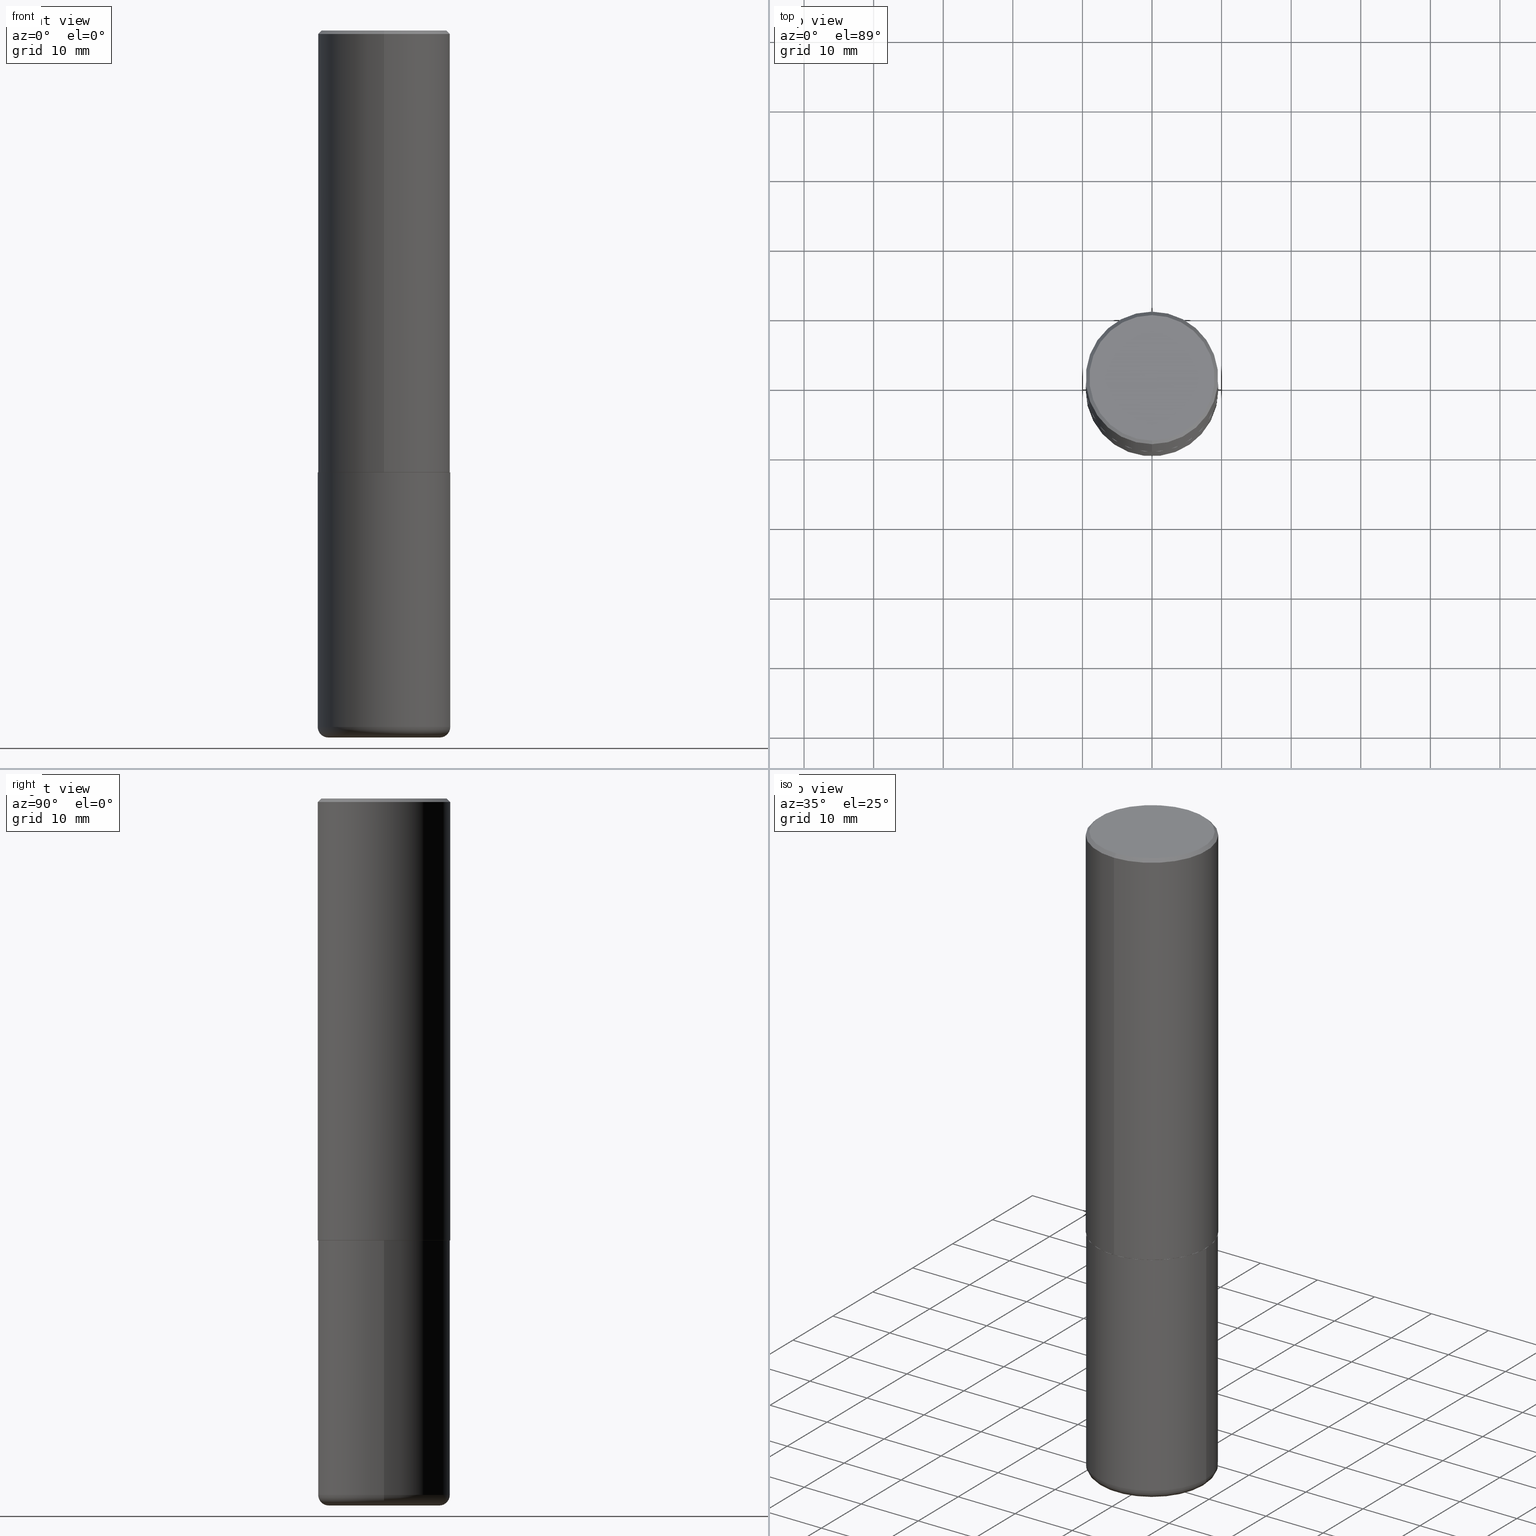
[diagram: canonical four-view strip — front | top / right | iso, engineering-drawing reading convention]
A machine part, canonical four-view strip (front | top / right | iso — engineering-drawing reading convention). The complete STEP part file that produces these views, byte-faithful:
ISO-10303-21;
HEADER;
FILE_DESCRIPTION (( 'STEP AP203' ),
    '1' );
FILE_NAME ('37208.STEP',
    '2024-03-01T21:56:50',
    ( '' ),
    ( '' ),
    'SwSTEP 2.0',
    'SolidWorks 2023',
    '' );
FILE_SCHEMA (( 'CONFIG_CONTROL_DESIGN' ));
ENDSEC;

DATA;
#1 = CIRCLE ( 'NONE', #268, 0.3750000000000000555 ) ;
#2 = VECTOR ( 'NONE', #57, 39.37007874015748143 ) ;
#3 = ORIENTED_EDGE ( 'NONE', *, *, #190, .F. ) ;
#4 = CIRCLE ( 'NONE', #330, 0.3750000000000000555 ) ;
#5 = PRODUCT ( '37208', '37208', '', ( #385 ) ) ;
#6 = DIRECTION ( 'NONE',  ( -2.445468806185136597E-29, 3.491481338843145583E-15, 1.000000000000000000 ) ) ;
#7 = ADVANCED_FACE ( 'NONE', ( #194 ), #284, .T. ) ;
#8 = EDGE_CURVE ( 'NONE', #395, #316, #4, .T. ) ;
#9 = APPLICATION_CONTEXT ( 'configuration controlled 3d designs of mechanical parts and assemblies' ) ;
#10 = EDGE_LOOP ( 'NONE', ( #233, #396 ) ) ;
#11 = FACE_OUTER_BOUND ( 'NONE', #92, .T. ) ;
#12 = CIRCLE ( 'NONE', #53, 0.3750000000000000555 ) ;
#13 = DIRECTION ( 'NONE',  ( -2.444946167972934928E-29, 3.492229786509738161E-15, 1.000000000000000000 ) ) ;
#14 = DIRECTION ( 'NONE',  ( -2.444946167972934928E-29, 3.492229786509738161E-15, 1.000000000000000000 ) ) ;
#15 = CARTESIAN_POINT ( 'NONE',  ( 9.635147096369438236E-29, -1.375643647504199401E-14, -3.939999999999999947 ) ) ;
#16 = CARTESIAN_POINT ( 'NONE',  ( 6.112365419932337880E-29, -8.730574466274345798E-15, -2.500000000000000000 ) ) ;
#17 = CLOSED_SHELL ( 'NONE', ( #60, #308, #262, #93, #41, #418 ) ) ;
#18 = DIRECTION ( 'NONE',  ( -2.445468806185136597E-29, 3.491481338843145583E-15, 1.000000000000000000 ) ) ;
#19 = EDGE_CURVE ( 'NONE', #294, #58, #226, .T. ) ;
#20 =( NAMED_UNIT ( * ) PLANE_ANGLE_UNIT ( ) SI_UNIT ( $, .RADIAN. ) );
#21 = LINE ( 'NONE', #265, #331 ) ;
#22 = CALENDAR_DATE ( 2024, 1, 3 ) ;
#23 = FACE_OUTER_BOUND ( 'NONE', #108, .T. ) ;
#24 = VERTEX_POINT ( 'NONE', #417 ) ;
#25 = DIRECTION ( 'NONE',  ( 1.000000000000000000, -6.982962677686267499E-15, 0.000000000000000000 ) ) ;
#26 = CIRCLE ( 'NONE', #76, 0.3750000000000002776 ) ;
#27 = APPROVAL ( #248, 'UNSPECIFIED' ) ;
#28 = COORDINATED_UNIVERSAL_TIME_OFFSET ( 5, 0, .BEHIND. ) ;
#29 = LINE ( 'NONE', #99, #371 ) ;
#30 = CARTESIAN_POINT ( 'NONE',  ( 2.664535259100376486E-15, 0.3750000000000001665, -1.309586169941152501E-15 ) ) ;
#31 = ORIENTED_EDGE ( 'NONE', *, *, #388, .F. ) ;
#32 = EDGE_LOOP ( 'NONE', ( #132, #345, #297, #275 ) ) ;
#33 = PRODUCT_DEFINITION_FORMATION_WITH_SPECIFIED_SOURCE ( 'ANY', '', #5, .NOT_KNOWN. ) ;
#34 = FACE_OUTER_BOUND ( 'NONE', #104, .T. ) ;
#35 = ORIENTED_EDGE ( 'NONE', *, *, #201, .F. ) ;
#36 = ORIENTED_EDGE ( 'NONE', *, *, #387, .T. ) ;
#37 = CYLINDRICAL_SURFACE ( 'NONE', #319, 0.3750000000000001665 ) ;
#38 = VERTEX_POINT ( 'NONE', #264 ) ;
#39 = EDGE_CURVE ( 'NONE', #58, #294, #266, .T. ) ;
#40 = CARTESIAN_POINT ( 'NONE',  ( -0.3750000000000000555, -8.578034651974553781E-15, -2.500000000000000000 ) ) ;
#41 = ADVANCED_FACE ( 'NONE', ( #34 ), #337, .T. ) ;
#42 = VECTOR ( 'NONE', #214, 39.37007874015748143 ) ;
#43 = PLANE ( 'NONE',  #70 ) ;
#44 = CARTESIAN_POINT ( 'NONE',  ( 0.3150000000000000577, -1.616555859884375729E-14, -4.000000000000000888 ) ) ;
#45 = ORIENTED_EDGE ( 'NONE', *, *, #234, .F. ) ;
#46 = CARTESIAN_POINT ( 'NONE',  ( 0.000000000000000000, 0.000000000000000000, 0.000000000000000000 ) ) ;
#47 = DIRECTION ( 'NONE',  ( -2.444946167972934928E-29, 3.492229786509738161E-15, 1.000000000000000000 ) ) ;
#48 = DIRECTION ( 'NONE',  ( -2.444946167972934928E-29, 3.492229786509738161E-15, 1.000000000000000000 ) ) ;
#49 = ORIENTED_EDGE ( 'NONE', *, *, #239, .F. ) ;
#50 = PRODUCT_RELATED_PRODUCT_CATEGORY ( 'detail', '', ( #5 ) ) ;
#51 = ORIENTED_EDGE ( 'NONE', *, *, #118, .T. ) ;
#52 = DATE_AND_TIME ( #344, #326 ) ;
#53 = AXIS2_PLACEMENT_3D ( 'NONE', #56, #411, #62 ) ;
#54 = LOCAL_TIME ( 16, 56, 50.00000000000000000, #89 ) ;
#55 = APPROVAL_STATUS ( 'not_yet_approved' ) ;
#56 = CARTESIAN_POINT ( 'NONE',  ( 4.889892335945890560E-31, -6.984459573019506053E-17, -0.02000000000000008715 ) ) ;
#57 = DIRECTION ( 'NONE',  ( -4.851104656540956386E-15, -0.7071067811865489050, -0.7071067811865461294 ) ) ;
#58 = VERTEX_POINT ( 'NONE', #298 ) ;
#59 = APPROVAL_DATE_TIME ( #352, #87 ) ;
#60 = ADVANCED_FACE ( 'NONE', ( #11 ), #401, .T. ) ;
#61 = DIRECTION ( 'NONE',  ( 1.000000000000000000, -6.982962677686264344E-15, 0.000000000000000000 ) ) ;
#62 = DIRECTION ( 'NONE',  ( -6.982962677686265922E-15, -1.000000000000000000, 3.494488891895536035E-15 ) ) ;
#63 = AXIS2_PLACEMENT_3D ( 'NONE', #15, #18, #203 ) ;
#64 = DIRECTION ( 'NONE',  ( 2.444946167972934928E-29, -3.492229786509738161E-15, -1.000000000000000000 ) ) ;
#65 = AXIS2_PLACEMENT_3D ( 'NONE', #80, #304, #82 ) ;
#66 = DIRECTION ( 'NONE',  ( -2.444946167972934928E-29, 3.492229786509738161E-15, 1.000000000000000000 ) ) ;
#67 = ORIENTED_EDGE ( 'NONE', *, *, #118, .F. ) ;
#68 = ORIENTED_EDGE ( 'NONE', *, *, #341, .F. ) ;
#69 = EDGE_LOOP ( 'NONE', ( #300, #193, #67, #68 ) ) ;
#70 = AXIS2_PLACEMENT_3D ( 'NONE', #105, #296, #142 ) ;
#71 = ORIENTED_EDGE ( 'NONE', *, *, #141, .F. ) ;
#72 = ORIENTED_EDGE ( 'NONE', *, *, #235, .T. ) ;
#73 = ADVANCED_FACE ( 'NONE', ( #230 ), #37, .T. ) ;
#74 = PRODUCT_DEFINITION_SHAPE ( 'NONE', 'NONE',  #397 ) ;
#75 = MANIFOLD_SOLID_BREP ( 'Body-Move/Copy2[1]', #17 ) ;
#76 = AXIS2_PLACEMENT_3D ( 'NONE', #143, #47, #400 ) ;
#77 = APPROVAL_PERSON_ORGANIZATION ( #287, #27, #154 ) ;
#78 = LINE ( 'NONE', #205, #176 ) ;
#79 = DIRECTION ( 'NONE',  ( 1.000000000000000000, -6.982962677686266711E-15, 0.000000000000000000 ) ) ;
#80 = CARTESIAN_POINT ( 'NONE',  ( -0.3150000000000000577, -1.151822685739767881E-14, -3.939999999999999947 ) ) ;
#81 = CYLINDRICAL_SURFACE ( 'NONE', #381, 0.3750000000000001665 ) ;
#82 = DIRECTION ( 'NONE',  ( -1.000000000000000000, 7.105427357601001859E-15, 0.000000000000000000 ) ) ;
#83 = AXIS2_PLACEMENT_3D ( 'NONE', #131, #64, #189 ) ;
#84 = CARTESIAN_POINT ( 'NONE',  ( -2.572686749164323547E-15, -0.3750000000000001110, -0.01999999999999877570 ) ) ;
#85 = PERSON_AND_ORGANIZATION_ROLE ( 'classification_officer' ) ;
#86 = EDGE_CURVE ( 'NONE', #139, #311, #146, .T. ) ;
#87 = APPROVAL ( #55, 'UNSPECIFIED' ) ;
#88 = APPROVAL_STATUS ( 'not_yet_approved' ) ;
#89 = COORDINATED_UNIVERSAL_TIME_OFFSET ( 5, 0, .BEHIND. ) ;
#90 = CIRCLE ( 'NONE', #302, 0.3750000000000002776 ) ;
#91 = ORIENTED_EDGE ( 'NONE', *, *, #102, .F. ) ;
#92 = EDGE_LOOP ( 'NONE', ( #51, #332, #343, #363 ) ) ;
#93 = ADVANCED_FACE ( 'NONE', ( #335 ), #145, .T. ) ;
#94 = DATE_AND_TIME ( #263, #372 ) ;
#95 = CARTESIAN_POINT ( 'NONE',  ( 0.3750000000000000555, -1.134731435124021338E-14, -2.500000000000000000 ) ) ;
#96 = CALENDAR_DATE ( 2024, 1, 3 ) ;
#97 = DIRECTION ( 'NONE',  ( -6.982962677686266711E-15, -1.000000000000000000, 2.921762560068730595E-15 ) ) ;
#98 = CARTESIAN_POINT ( 'NONE',  ( -4.181009497849235809E-45, 5.971929401690963589E-31, 1.710061985256567949E-16 ) ) ;
#99 = CARTESIAN_POINT ( 'NONE',  ( -0.3750000000000000555, 2.664535259100376091E-15, -1.844600658845589598E-29 ) ) ;
#100 = ORIENTED_EDGE ( 'NONE', *, *, #328, .T. ) ;
#101 = CARTESIAN_POINT ( 'NONE',  ( -2.572686749164323547E-15, -0.3750000000000001110, -0.01999999999999877570 ) ) ;
#102 = EDGE_CURVE ( 'NONE', #103, #206, #26, .T. ) ;
#103 = VERTEX_POINT ( 'NONE', #238 ) ;
#104 = EDGE_LOOP ( 'NONE', ( #31, #72, #179, #71 ) ) ;
#105 = CARTESIAN_POINT ( 'NONE',  ( 6.113672015462842613E-29, -8.728703347107864943E-15, -2.500000000000000000 ) ) ;
#106 = AXIS2_PLACEMENT_3D ( 'NONE', #289, #159, #285 ) ;
#107 = APPROVAL_PERSON_ORGANIZATION ( #350, #87, #185 ) ;
#108 = EDGE_LOOP ( 'NONE', ( #49, #313, #240, #241 ) ) ;
#109 = DESIGN_CONTEXT ( 'detailed design', #122, 'design' ) ;
#110 = FACE_OUTER_BOUND ( 'NONE', #357, .T. ) ;
#111 = CIRCLE ( 'NONE', #237, 0.3750000000000000555 ) ;
#112 = DIRECTION ( 'NONE',  ( -6.982962677686266711E-15, -1.000000000000000000, 2.913971193241878794E-15 ) ) ;
#113 = CARTESIAN_POINT ( 'NONE',  ( 6.112365419932337880E-29, -8.730574466274345798E-15, -2.500000000000000000 ) ) ;
#114 = EDGE_LOOP ( 'NONE', ( #45, #382 ) ) ;
#115 = AXIS2_PLACEMENT_3D ( 'NONE', #98, #66, #231 ) ;
#116 = AXIS2_PLACEMENT_3D ( 'NONE', #16, #48, #359 ) ;
#117 = PERSON_AND_ORGANIZATION ( #325, #348 ) ;
#118 = EDGE_CURVE ( 'NONE', #135, #274, #183, .T. ) ;
#119 = LINE ( 'NONE', #253, #184 ) ;
#120 = ORIENTED_EDGE ( 'NONE', *, *, #277, .F. ) ;
#121 = DIRECTION ( 'NONE',  ( -6.982962677686266711E-15, -1.000000000000000000, 2.921762560068730595E-15 ) ) ;
#122 = APPLICATION_CONTEXT ( 'configuration controlled 3d designs of mechanical parts and assemblies' ) ;
#123 = COORDINATED_UNIVERSAL_TIME_OFFSET ( 5, 0, .BEHIND. ) ;
#124 = CARTESIAN_POINT ( 'NONE',  ( 0.000000000000000000, 0.000000000000000000, 0.000000000000000000 ) ) ;
#125 = DIRECTION ( 'NONE',  ( -2.445468806185136877E-29, 3.491481338843145188E-15, 1.000000000000000000 ) ) ;
#126 = CC_DESIGN_APPROVAL ( #27, ( #397 ) ) ;
#127 = DIRECTION ( 'NONE',  ( 1.000000000000000000, -6.982962677686266711E-15, 0.000000000000000000 ) ) ;
#128 = CARTESIAN_POINT ( 'NONE',  ( 2.618611004132350411E-15, 0.3749999999999999445, -0.02000000000000139513 ) ) ;
#129 = DIRECTION ( 'NONE',  ( -6.982962677686265922E-15, -1.000000000000000000, 3.494488891895536035E-15 ) ) ;
#130 = LENGTH_MEASURE_WITH_UNIT ( LENGTH_MEASURE( 0.02539999999999999897 ), #295 );
#131 = CARTESIAN_POINT ( 'NONE',  ( 4.889892335945890560E-31, -6.984459573019506053E-17, -0.02000000000000008715 ) ) ;
#132 = ORIENTED_EDGE ( 'NONE', *, *, #102, .T. ) ;
#133 = DIRECTION ( 'NONE',  ( -2.445468806185136597E-29, 3.491481338843145583E-15, 1.000000000000000000 ) ) ;
#134 = DIRECTION ( 'NONE',  ( -2.444946167972934928E-29, 3.492229786509738161E-15, 1.000000000000000000 ) ) ;
#135 = VERTEX_POINT ( 'NONE', #305 ) ;
#136 = DIRECTION ( 'NONE',  ( -2.444946167972934928E-29, 3.492229786509738161E-15, 1.000000000000000000 ) ) ;
#137 = APPROVAL ( #88, 'UNSPECIFIED' ) ;
#138 = APPROVAL_PERSON_ORGANIZATION ( #186, #137, #278 ) ;
#139 = VERTEX_POINT ( 'NONE', #40 ) ;
#140 = VERTEX_POINT ( 'NONE', #44 ) ;
#141 = EDGE_CURVE ( 'NONE', #274, #135, #1, .T. ) ;
#142 = DIRECTION ( 'NONE',  ( -1.000000000000000000, 6.982962677686265922E-15, -4.876176775795935793E-29 ) ) ;
#143 = CARTESIAN_POINT ( 'NONE',  ( 6.109920473764365540E-29, -8.727082236487837614E-15, -2.499000000000000110 ) ) ;
#144 = DIRECTION ( 'NONE',  ( 6.982962677686265922E-15, 1.000000000000000000, -3.492229786509738161E-15 ) ) ;
#145 = CYLINDRICAL_SURFACE ( 'NONE', #347, 0.3750000000000000555 ) ;
#146 = CIRCLE ( 'NONE', #208, 0.3750000000000000555 ) ;
#147 = LOCAL_TIME ( 16, 56, 50.00000000000000000, #314 ) ;
#148 = VERTEX_POINT ( 'NONE', #306 ) ;
#149 = ORIENTED_EDGE ( 'NONE', *, *, #86, .T. ) ;
#150 = CC_DESIGN_PERSON_AND_ORGANIZATION_ASSIGNMENT ( #117, #354, ( #33 ) ) ;
#151 = ORIENTED_EDGE ( 'NONE', *, *, #141, .T. ) ;
#152 = CONICAL_SURFACE ( 'NONE', #83, 0.3750000000000000555, 0.7853981633974468357 ) ;
#153 = CONICAL_SURFACE ( 'NONE', #355, 0.3739999999999999991, 0.7853981633976873100 ) ;
#154 = APPROVAL_ROLE ( '' ) ;
#155 = LINE ( 'NONE', #101, #2 ) ;
#156 = DATE_TIME_ROLE ( 'creation_date' ) ;
#157 = APPLICATION_PROTOCOL_DEFINITION ( 'international standard', 'config_control_design', 1994, #122 ) ;
#158 = DIRECTION ( 'NONE',  ( 1.000000000000000000, -6.982962677686263555E-15, 4.883557194083111219E-29 ) ) ;
#159 = DIRECTION ( 'NONE',  ( 2.444946167972934928E-29, -3.492229786509738161E-15, -1.000000000000000000 ) ) ;
#160 = APPLICATION_PROTOCOL_DEFINITION ( 'international standard', 'config_control_design', 1994, #9 ) ;
#161 = CLOSED_SHELL ( 'NONE', ( #365, #73, #164, #7, #177, #270, #356, #416 ) ) ;
#162 = ORIENTED_EDGE ( 'NONE', *, *, #271, .T. ) ;
#163 = CARTESIAN_POINT ( 'NONE',  ( 9.781875224740547508E-29, -1.396592535537258391E-14, -4.000000000000000888 ) ) ;
#164 = ADVANCED_FACE ( 'NONE', ( #217 ), #152, .T. ) ;
#165 = ORIENTED_EDGE ( 'NONE', *, *, #342, .F. ) ;
#166 = AXIS2_PLACEMENT_3D ( 'NONE', #187, #220, #25 ) ;
#167 = AXIS2_PLACEMENT_3D ( 'NONE', #280, #174, #368 ) ;
#168 = CARTESIAN_POINT ( 'NONE',  ( 4.937077108964125641E-29, -2.090395200594849049E-14, -4.000000000000000000 ) ) ;
#169 = DIRECTION ( 'NONE',  ( -2.445468806185136597E-29, 3.491481338843145583E-15, 1.000000000000000000 ) ) ;
#170 = AXIS2_PLACEMENT_3D ( 'NONE', #338, #178, #79 ) ;
#171 = AXIS2_PLACEMENT_3D ( 'NONE', #257, #315, #158 ) ;
#172 = CARTESIAN_POINT ( 'NONE',  ( 0.000000000000000000, 0.000000000000000000, 0.000000000000000000 ) ) ;
#173 = ORIENTED_EDGE ( 'NONE', *, *, #307, .T. ) ;
#174 = DIRECTION ( 'NONE',  ( -2.444946167972934647E-29, 3.492229786509738161E-15, 1.000000000000000000 ) ) ;
#175 = EDGE_CURVE ( 'NONE', #206, #316, #322, .T. ) ;
#176 = VECTOR ( 'NONE', #334, 39.37007874015748143 ) ;
#177 = ADVANCED_FACE ( 'NONE', ( #269 ), #81, .T. ) ;
#178 = DIRECTION ( 'NONE',  ( -2.445468806185136597E-29, 3.491481338843145583E-15, 1.000000000000000000 ) ) ;
#179 = ORIENTED_EDGE ( 'NONE', *, *, #341, .T. ) ;
#180 = CARTESIAN_POINT ( 'NONE',  ( 6.112365419932337880E-29, -8.730574466274345798E-15, -2.500000000000000000 ) ) ;
#181 = PERSON_AND_ORGANIZATION_ROLE ( 'design_owner' ) ;
#182 = ORIENTED_EDGE ( 'NONE', *, *, #370, .F. ) ;
#183 = CIRCLE ( 'NONE', #170, 0.3750000000000000555 ) ;
#184 = VECTOR ( 'NONE', #408, 39.37007874015748143 ) ;
#185 = APPROVAL_ROLE ( '' ) ;
#186 = PERSON_AND_ORGANIZATION ( #325, #348 ) ;
#187 = CARTESIAN_POINT ( 'NONE',  ( 9.781875224740547508E-29, -1.396592535537258391E-14, -4.000000000000000888 ) ) ;
#188 = CONICAL_SURFACE ( 'NONE', #413, 0.3739999999999999991, 0.7853981633976873100 ) ;
#189 = DIRECTION ( 'NONE',  ( 6.982962677686265922E-15, 1.000000000000000000, -3.494488891895536035E-15 ) ) ;
#190 = EDGE_CURVE ( 'NONE', #274, #139, #29, .T. ) ;
#191 = CARTESIAN_POINT ( 'NONE',  ( -2.618611004132351200E-15, -0.3750000000000001665, 1.309586169941152501E-15 ) ) ;
#192 = EDGE_LOOP ( 'NONE', ( #340, #36, #162, #35 ) ) ;
#193 = ORIENTED_EDGE ( 'NONE', *, *, #388, .T. ) ;
#194 = FACE_OUTER_BOUND ( 'NONE', #389, .T. ) ;
#195 = CARTESIAN_POINT ( 'NONE',  ( 2.478951750578623420E-15, 0.3549999999999998157, -1.154238474948128131E-15 ) ) ;
#196 = PLANE ( 'NONE',  #393 ) ;
#197 = CC_DESIGN_SECURITY_CLASSIFICATION ( #364, ( #33 ) ) ;
#198 = AXIS2_PLACEMENT_3D ( 'NONE', #195, #236, #144 ) ;
#199 = CC_DESIGN_DATE_AND_TIME_ASSIGNMENT ( #94, #156, ( #397 ) ) ;
#200 = DIRECTION ( 'NONE',  ( 2.438088387897960049E-29, -3.491481338843145188E-15, -1.000000000000000000 ) ) ;
#201 = EDGE_CURVE ( 'NONE', #316, #395, #12, .T. ) ;
#202 = FACE_OUTER_BOUND ( 'NONE', #290, .T. ) ;
#203 = DIRECTION ( 'NONE',  ( 1.000000000000000000, -6.982962677686263555E-15, 4.883557194083111219E-29 ) ) ;
#204 = DIRECTION ( 'NONE',  ( 1.000000000000000000, -6.982962677686265922E-15, 4.876176775795935793E-29 ) ) ;
#205 = CARTESIAN_POINT ( 'NONE',  ( 2.618611004132350411E-15, 0.3749999999999999445, -0.02000000000000139513 ) ) ;
#206 = VERTEX_POINT ( 'NONE', #260 ) ;
#207 = CC_DESIGN_PERSON_AND_ORGANIZATION_ASSIGNMENT ( #407, #85, ( #364 ) ) ;
#208 = AXIS2_PLACEMENT_3D ( 'NONE', #329, #169, #244 ) ;
#209 = LOCAL_TIME ( 16, 56, 50.00000000000000000, #28 ) ;
#210 = MANIFOLD_SOLID_BREP ( 'Body-Move/Copy2[2]', #161 ) ;
#211 = PERSON_AND_ORGANIZATION_ROLE ( 'creator' ) ;
#212 =( NAMED_UNIT ( * ) SI_UNIT ( $, .STERADIAN. ) SOLID_ANGLE_UNIT ( ) );
#213 = CC_DESIGN_PERSON_AND_ORGANIZATION_ASSIGNMENT ( #346, #211, ( #33 ) ) ;
#214 = DIRECTION ( 'NONE',  ( -2.444946167972934928E-29, 3.492229786509738161E-15, 1.000000000000000000 ) ) ;
#215 = AXIS2_PLACEMENT_3D ( 'NONE', #113, #406, #121 ) ;
#216 = DATE_TIME_ROLE ( 'classification_date' ) ;
#217 = FACE_OUTER_BOUND ( 'NONE', #222, .T. ) ;
#218 = ORIENTED_EDGE ( 'NONE', *, *, #8, .T. ) ;
#219 = SECURITY_CLASSIFICATION_LEVEL ( 'unclassified' ) ;
#220 = DIRECTION ( 'NONE',  ( -2.445468806185136597E-29, 3.491481338843145583E-15, 1.000000000000000000 ) ) ;
#221 = CARTESIAN_POINT ( 'NONE',  ( -4.181009497849235809E-45, 5.971929401690963589E-31, 1.710061985256567949E-16 ) ) ;
#222 = EDGE_LOOP ( 'NONE', ( #339, #173, #218, #182 ) ) ;
#223 = APPROVAL_DATE_TIME ( #320, #137 ) ;
#224 = CC_DESIGN_PERSON_AND_ORGANIZATION_ASSIGNMENT ( #373, #259, ( #397 ) ) ;
#225 = DIRECTION ( 'NONE',  ( -1.000000000000000000, 6.982962677686265922E-15, -4.876176775795935793E-29 ) ) ;
#226 = CIRCLE ( 'NONE', #392, 0.3549999999999998157 ) ;
#227 = CIRCLE ( 'NONE', #65, 0.06000000000000017819 ) ;
#228 = FACE_OUTER_BOUND ( 'NONE', #69, .T. ) ;
#229 = ORIENTED_EDGE ( 'NONE', *, *, #402, .F. ) ;
#230 = FACE_OUTER_BOUND ( 'NONE', #32, .T. ) ;
#231 = DIRECTION ( 'NONE',  ( -6.982962677686266711E-15, -1.000000000000000000, 3.492229786509737767E-15 ) ) ;
#232 =( GEOMETRIC_REPRESENTATION_CONTEXT ( 3 ) GLOBAL_UNCERTAINTY_ASSIGNED_CONTEXT ( ( #362 ) ) GLOBAL_UNIT_ASSIGNED_CONTEXT ( ( #281, #20, #212 ) ) REPRESENTATION_CONTEXT ( 'NONE', 'WORKASPACE' ) );
#233 = ORIENTED_EDGE ( 'NONE', *, *, #19, .T. ) ;
#234 = EDGE_CURVE ( 'NONE', #140, #148, #291, .T. ) ;
#235 = EDGE_CURVE ( 'NONE', #148, #140, #398, .T. ) ;
#236 = DIRECTION ( 'NONE',  ( 2.444946167972934647E-29, -3.492229786509738161E-15, -1.000000000000000000 ) ) ;
#237 = AXIS2_PLACEMENT_3D ( 'NONE', #279, #261, #61 ) ;
#238 = CARTESIAN_POINT ( 'NONE',  ( -2.618611004132290852E-15, -0.3750000000000090483, -2.498999999999999222 ) ) ;
#239 = EDGE_CURVE ( 'NONE', #24, #206, #119, .T. ) ;
#240 = ORIENTED_EDGE ( 'NONE', *, *, #277, .T. ) ;
#241 = ORIENTED_EDGE ( 'NONE', *, *, #387, .F. ) ;
#242 = FACE_OUTER_BOUND ( 'NONE', #114, .T. ) ;
#243 = AXIS2_PLACEMENT_3D ( 'NONE', #124, #255, #317 ) ;
#244 = DIRECTION ( 'NONE',  ( 1.000000000000000000, -6.982962677686264344E-15, 0.000000000000000000 ) ) ;
#245 = ORIENTED_EDGE ( 'NONE', *, *, #293, .T. ) ;
#246 = AXIS2_PLACEMENT_3D ( 'NONE', #321, #336, #378 ) ;
#247 = FACE_OUTER_BOUND ( 'NONE', #405, .T. ) ;
#248 = APPROVAL_STATUS ( 'not_yet_approved' ) ;
#249 = CC_DESIGN_DATE_AND_TIME_ASSIGNMENT ( #52, #216, ( #364 ) ) ;
#250 = FACE_OUTER_BOUND ( 'NONE', #10, .T. ) ;
#251 = ADVANCED_BREP_SHAPE_REPRESENTATION ( '37208', ( #75, #210, #292 ), #232 ) ;
#252 = LINE ( 'NONE', #191, #42 ) ;
#253 = CARTESIAN_POINT ( 'NONE',  ( 2.657429831742835431E-15, 0.3739999999999912839, -2.500000000000001332 ) ) ;
#254 = CARTESIAN_POINT ( 'NONE',  ( 0.000000000000000000, 0.000000000000000000, 0.000000000000000000 ) ) ;
#255 = DIRECTION ( 'NONE',  ( -2.445468806185136597E-29, 3.491481338843145583E-15, 1.000000000000000000 ) ) ;
#256 = ORIENTED_EDGE ( 'NONE', *, *, #307, .F. ) ;
#257 = CARTESIAN_POINT ( 'NONE',  ( 9.635147096369438236E-29, -1.375643647504199401E-14, -3.939999999999999947 ) ) ;
#258 = AXIS2_PLACEMENT_3D ( 'NONE', #163, #133, #394 ) ;
#259 = PERSON_AND_ORGANIZATION_ROLE ( 'creator' ) ;
#260 = CARTESIAN_POINT ( 'NONE',  ( 2.664535259100408040E-15, 0.3749999999999915623, -2.499000000000001442 ) ) ;
#261 = DIRECTION ( 'NONE',  ( -2.445468806185136597E-29, 3.491481338843145583E-15, 1.000000000000000000 ) ) ;
#262 = ADVANCED_FACE ( 'NONE', ( #202 ), #43, .F. ) ;
#263 = CALENDAR_DATE ( 2024, 1, 3 ) ;
#264 = CARTESIAN_POINT ( 'NONE',  ( -2.611628041454602471E-15, -0.3740000000000087699, -2.499999999999999112 ) ) ;
#265 = CARTESIAN_POINT ( 'NONE',  ( -2.611628041454602471E-15, -0.3740000000000087699, -2.499999999999999112 ) ) ;
#266 = CIRCLE ( 'NONE', #115, 0.3549999999999998157 ) ;
#267 = ORIENTED_EDGE ( 'NONE', *, *, #402, .T. ) ;
#268 = AXIS2_PLACEMENT_3D ( 'NONE', #303, #6, #127 ) ;
#269 = FACE_OUTER_BOUND ( 'NONE', #192, .T. ) ;
#270 = ADVANCED_FACE ( 'NONE', ( #23 ), #188, .T. ) ;
#271 = EDGE_CURVE ( 'NONE', #103, #395, #252, .T. ) ;
#272 = DIRECTION ( 'NONE',  ( -2.444946167972934928E-29, 3.492229786509738161E-15, 1.000000000000000000 ) ) ;
#273 = CC_DESIGN_APPROVAL ( #137, ( #33 ) ) ;
#274 = VERTEX_POINT ( 'NONE', #349 ) ;
#275 = ORIENTED_EDGE ( 'NONE', *, *, #271, .F. ) ;
#276 = VECTOR ( 'NONE', #125, 39.37007874015748143 ) ;
#277 = EDGE_CURVE ( 'NONE', #38, #103, #21, .T. ) ;
#278 = APPROVAL_ROLE ( '' ) ;
#279 = CARTESIAN_POINT ( 'NONE',  ( 6.113672015462842613E-29, -8.728703347107864943E-15, -2.500000000000000000 ) ) ;
#280 = CARTESIAN_POINT ( 'NONE',  ( 6.112365419932337880E-29, -8.730574466274345798E-15, -2.500000000000000000 ) ) ;
#281 =( CONVERSION_BASED_UNIT ( 'INCH', #130 ) LENGTH_UNIT ( ) NAMED_UNIT ( #369 ) );
#282 = DIRECTION ( 'NONE',  ( -6.982962677686266711E-15, -1.000000000000000000, 3.492229786509738556E-15 ) ) ;
#283 = CARTESIAN_POINT ( 'NONE',  ( 0.3750000000000000555, -2.618611004132350016E-15, 1.828566290923476203E-29 ) ) ;
#284 = CONICAL_SURFACE ( 'NONE', #106, 0.3750000000000000555, 0.7853981633974468357 ) ;
#285 = DIRECTION ( 'NONE',  ( 6.982962677686265922E-15, 1.000000000000000000, -3.494488891895536035E-15 ) ) ;
#286 = CIRCLE ( 'NONE', #215, 0.3739999999999999991 ) ;
#287 = PERSON_AND_ORGANIZATION ( #325, #348 ) ;
#288 = DIRECTION ( 'NONE',  ( -2.444946167972934928E-29, 3.492229786509738161E-15, 1.000000000000000000 ) ) ;
#289 = CARTESIAN_POINT ( 'NONE',  ( 4.889892335945890560E-31, -6.984459573019506053E-17, -0.02000000000000008715 ) ) ;
#290 = EDGE_LOOP ( 'NONE', ( #100, #149 ) ) ;
#291 = CIRCLE ( 'NONE', #166, 0.3150000000000000577 ) ;
#292 = AXIS2_PLACEMENT_3D ( 'NONE', #254, #376, #309 ) ;
#293 = EDGE_CURVE ( 'NONE', #135, #311, #409, .T. ) ;
#294 = VERTEX_POINT ( 'NONE', #323 ) ;
#295 =( LENGTH_UNIT ( ) NAMED_UNIT ( * ) SI_UNIT ( $, .METRE. ) );
#296 = DIRECTION ( 'NONE',  ( 2.438088387897960049E-29, -3.491481338843145188E-15, -1.000000000000000000 ) ) ;
#297 = ORIENTED_EDGE ( 'NONE', *, *, #8, .F. ) ;
#298 = CARTESIAN_POINT ( 'NONE',  ( -2.504081769186608216E-15, -0.3549999999999998157, 1.410747772736613804E-15 ) ) ;
#299 = CARTESIAN_POINT ( 'NONE',  ( 6.109920473764365540E-29, -8.727082236487837614E-15, -2.499000000000000110 ) ) ;
#300 = ORIENTED_EDGE ( 'NONE', *, *, #234, .T. ) ;
#301 = VECTOR ( 'NONE', #134, 39.37007874015748143 ) ;
#302 = AXIS2_PLACEMENT_3D ( 'NONE', #299, #14, #112 ) ;
#303 = CARTESIAN_POINT ( 'NONE',  ( 9.635147096369438236E-29, -1.375643647504199401E-14, -3.939999999999999947 ) ) ;
#304 = DIRECTION ( 'NONE',  ( 7.105427357601001859E-15, 1.000000000000000000, -3.491481338843145583E-15 ) ) ;
#305 = CARTESIAN_POINT ( 'NONE',  ( 0.3750000000000001110, -1.637504747917434403E-14, -3.939999999999999947 ) ) ;
#306 = CARTESIAN_POINT ( 'NONE',  ( -0.3150000000000000577, -1.140980847683494193E-14, -4.000000000000000888 ) ) ;
#307 = EDGE_CURVE ( 'NONE', #58, #395, #155, .T. ) ;
#308 = ADVANCED_FACE ( 'NONE', ( #228 ), #310, .T. ) ;
#309 = DIRECTION ( 'NONE',  ( 1.000000000000000000, 0.000000000000000000, 0.000000000000000000 ) ) ;
#310 = TOROIDAL_SURFACE ( 'NONE', #171, 0.3150000000000000577, 0.06000000000000021289 ) ;
#311 = VERTEX_POINT ( 'NONE', #95 ) ;
#312 = APPROVAL_DATE_TIME ( #415, #27 ) ;
#313 = ORIENTED_EDGE ( 'NONE', *, *, #342, .T. ) ;
#314 = COORDINATED_UNIVERSAL_TIME_OFFSET ( 5, 0, .BEHIND. ) ;
#315 = DIRECTION ( 'NONE',  ( -2.445468806185136597E-29, 3.491481338843145583E-15, 1.000000000000000000 ) ) ;
#316 = VERTEX_POINT ( 'NONE', #128 ) ;
#317 = DIRECTION ( 'NONE',  ( 1.000000000000000000, -6.982962677686265922E-15, 4.876176775795935793E-29 ) ) ;
#318 = DIRECTION ( 'NONE',  ( -4.937700262165728178E-15, -0.7071067811867141062, 0.7071067811863809283 ) ) ;
#319 = AXIS2_PLACEMENT_3D ( 'NONE', #333, #272, #391 ) ;
#320 = DATE_AND_TIME ( #96, #54 ) ;
#321 = CARTESIAN_POINT ( 'NONE',  ( 0.3150000000000000577, -1.595606971851316740E-14, -3.939999999999999947 ) ) ;
#322 = LINE ( 'NONE', #30, #301 ) ;
#323 = CARTESIAN_POINT ( 'NONE',  ( 2.548781377355487113E-15, 0.3549999999999998157, -1.068735375685299770E-15 ) ) ;
#324 = ORIENTED_EDGE ( 'NONE', *, *, #201, .T. ) ;
#325 = PERSON ( 'UNSPECIFIED', 'UNSPECIFIED', 'UNSPECIFIED', ('UNSPECIFIED'), ('UNSPECIFIED'), ('UNSPECIFIED') ) ;
#326 = LOCAL_TIME ( 16, 56, 50.00000000000000000, #123 ) ;
#327 = SHAPE_DEFINITION_REPRESENTATION ( #74, #251 ) ;
#328 = EDGE_CURVE ( 'NONE', #311, #139, #111, .T. ) ;
#329 = CARTESIAN_POINT ( 'NONE',  ( 6.113672015462842613E-29, -8.728703347107864943E-15, -2.500000000000000000 ) ) ;
#330 = AXIS2_PLACEMENT_3D ( 'NONE', #414, #136, #129 ) ;
#331 = VECTOR ( 'NONE', #318, 39.37007874015748143 ) ;
#332 = ORIENTED_EDGE ( 'NONE', *, *, #190, .T. ) ;
#333 = CARTESIAN_POINT ( 'NONE',  ( 0.000000000000000000, 0.000000000000000000, 0.000000000000000000 ) ) ;
#334 = DIRECTION ( 'NONE',  ( 4.937700262164540154E-15, 0.7071067811865440200, -0.7071067811865510144 ) ) ;
#335 = FACE_OUTER_BOUND ( 'NONE', #360, .T. ) ;
#336 = DIRECTION ( 'NONE',  ( -6.982962677686266711E-15, -1.000000000000000000, 3.491481338843145583E-15 ) ) ;
#337 = TOROIDAL_SURFACE ( 'NONE', #63, 0.3150000000000000577, 0.06000000000000021289 ) ;
#338 = CARTESIAN_POINT ( 'NONE',  ( 9.635147096369438236E-29, -1.375643647504199401E-14, -3.939999999999999947 ) ) ;
#339 = ORIENTED_EDGE ( 'NONE', *, *, #39, .F. ) ;
#340 = ORIENTED_EDGE ( 'NONE', *, *, #175, .F. ) ;
#341 = EDGE_CURVE ( 'NONE', #140, #135, #403, .T. ) ;
#342 = EDGE_CURVE ( 'NONE', #24, #38, #286, .T. ) ;
#343 = ORIENTED_EDGE ( 'NONE', *, *, #328, .F. ) ;
#344 = CALENDAR_DATE ( 2024, 1, 3 ) ;
#345 = ORIENTED_EDGE ( 'NONE', *, *, #175, .T. ) ;
#346 = PERSON_AND_ORGANIZATION ( #325, #348 ) ;
#347 = AXIS2_PLACEMENT_3D ( 'NONE', #172, #366, #204 ) ;
#348 = ORGANIZATION ( 'UNSPECIFIED', 'UNSPECIFIED', '' ) ;
#349 = CARTESIAN_POINT ( 'NONE',  ( -0.3750000000000001110, -1.109190121594161832E-14, -3.939999999999999947 ) ) ;
#350 = PERSON_AND_ORGANIZATION ( #325, #348 ) ;
#351 = DIRECTION ( 'NONE',  ( -2.445468806185136877E-29, 3.491481338843145188E-15, 1.000000000000000000 ) ) ;
#352 = DATE_AND_TIME ( #22, #147 ) ;
#353 = DIRECTION ( 'NONE',  ( -6.982962677686266711E-15, -1.000000000000000000, 3.492229786509737767E-15 ) ) ;
#354 = PERSON_AND_ORGANIZATION_ROLE ( 'design_supplier' ) ;
#355 = AXIS2_PLACEMENT_3D ( 'NONE', #180, #404, #367 ) ;
#356 = ADVANCED_FACE ( 'NONE', ( #247 ), #375, .F. ) ;
#357 = EDGE_LOOP ( 'NONE', ( #267, #399, #91, #120 ) ) ;
#358 = DIRECTION ( 'NONE',  ( -2.444946167972934928E-29, 3.492229786509738161E-15, 1.000000000000000000 ) ) ;
#359 = DIRECTION ( 'NONE',  ( -6.982962677686266711E-15, -1.000000000000000000, 2.921762560068730595E-15 ) ) ;
#360 = EDGE_LOOP ( 'NONE', ( #3, #151, #245, #386 ) ) ;
#361 = CC_DESIGN_PERSON_AND_ORGANIZATION_ASSIGNMENT ( #379, #181, ( #5 ) ) ;
#362 = UNCERTAINTY_MEASURE_WITH_UNIT (LENGTH_MEASURE( 1.000000000000000082E-05 ), #281, 'distance_accuracy_value', 'NONE');
#363 = ORIENTED_EDGE ( 'NONE', *, *, #293, .F. ) ;
#364 = SECURITY_CLASSIFICATION ( '', '', #219 ) ;
#365 = ADVANCED_FACE ( 'NONE', ( #110 ), #153, .T. ) ;
#366 = DIRECTION ( 'NONE',  ( -2.445468806185136597E-29, 3.491481338843145583E-15, 1.000000000000000000 ) ) ;
#367 = DIRECTION ( 'NONE',  ( -6.982962677686266711E-15, -1.000000000000000000, 2.921762560068730595E-15 ) ) ;
#368 = DIRECTION ( 'NONE',  ( -6.982962677686265922E-15, -1.000000000000000000, 3.492229786509738161E-15 ) ) ;
#369 = DIMENSIONAL_EXPONENTS ( 1.000000000000000000, 0.000000000000000000, 0.000000000000000000, 0.000000000000000000, 0.000000000000000000, 0.000000000000000000, 0.000000000000000000 ) ;
#370 = EDGE_CURVE ( 'NONE', #294, #316, #78, .T. ) ;
#371 = VECTOR ( 'NONE', #351, 39.37007874015748143 ) ;
#372 = LOCAL_TIME ( 16, 56, 50.00000000000000000, #384 ) ;
#373 = PERSON_AND_ORGANIZATION ( #325, #348 ) ;
#374 = ORIENTED_EDGE ( 'NONE', *, *, #370, .T. ) ;
#375 = PLANE ( 'NONE',  #167 ) ;
#376 = DIRECTION ( 'NONE',  ( 0.000000000000000000, 0.000000000000000000, 1.000000000000000000 ) ) ;
#377 = CARTESIAN_POINT ( 'NONE',  ( 6.112365419932337880E-29, -8.730574466274345798E-15, -2.500000000000000000 ) ) ;
#378 = DIRECTION ( 'NONE',  ( 1.000000000000000000, -6.982962677686279332E-15, 0.000000000000000000 ) ) ;
#379 = PERSON_AND_ORGANIZATION ( #325, #348 ) ;
#380 = ORIENTED_EDGE ( 'NONE', *, *, #19, .F. ) ;
#381 = AXIS2_PLACEMENT_3D ( 'NONE', #46, #13, #282 ) ;
#382 = ORIENTED_EDGE ( 'NONE', *, *, #235, .F. ) ;
#383 = CC_DESIGN_APPROVAL ( #87, ( #364 ) ) ;
#384 = COORDINATED_UNIVERSAL_TIME_OFFSET ( 5, 0, .BEHIND. ) ;
#385 = MECHANICAL_CONTEXT ( 'NONE', #9, 'mechanical' ) ;
#386 = ORIENTED_EDGE ( 'NONE', *, *, #86, .F. ) ;
#387 = EDGE_CURVE ( 'NONE', #206, #103, #90, .T. ) ;
#388 = EDGE_CURVE ( 'NONE', #148, #274, #227, .T. ) ;
#389 = EDGE_LOOP ( 'NONE', ( #256, #380, #374, #324 ) ) ;
#390 = CIRCLE ( 'NONE', #116, 0.3739999999999999991 ) ;
#391 = DIRECTION ( 'NONE',  ( -6.982962677686266711E-15, -1.000000000000000000, 3.492229786509738556E-15 ) ) ;
#392 = AXIS2_PLACEMENT_3D ( 'NONE', #221, #358, #353 ) ;
#393 = AXIS2_PLACEMENT_3D ( 'NONE', #168, #200, #225 ) ;
#394 = DIRECTION ( 'NONE',  ( 1.000000000000000000, -6.982962677686267499E-15, 0.000000000000000000 ) ) ;
#395 = VERTEX_POINT ( 'NONE', #84 ) ;
#396 = ORIENTED_EDGE ( 'NONE', *, *, #39, .T. ) ;
#397 = PRODUCT_DEFINITION ( 'UNKNOWN', '', #33, #109 ) ;
#398 = CIRCLE ( 'NONE', #258, 0.3150000000000000577 ) ;
#399 = ORIENTED_EDGE ( 'NONE', *, *, #239, .T. ) ;
#400 = DIRECTION ( 'NONE',  ( -6.982962677686266711E-15, -1.000000000000000000, 2.913971193241878794E-15 ) ) ;
#401 = CYLINDRICAL_SURFACE ( 'NONE', #243, 0.3750000000000000555 ) ;
#402 = EDGE_CURVE ( 'NONE', #38, #24, #390, .T. ) ;
#403 = CIRCLE ( 'NONE', #246, 0.06000000000000017819 ) ;
#404 = DIRECTION ( 'NONE',  ( -2.444946167972934928E-29, 3.492229786509738161E-15, 1.000000000000000000 ) ) ;
#405 = EDGE_LOOP ( 'NONE', ( #229, #165 ) ) ;
#406 = DIRECTION ( 'NONE',  ( -2.444946167972934928E-29, 3.492229786509738161E-15, 1.000000000000000000 ) ) ;
#407 = PERSON_AND_ORGANIZATION ( #325, #348 ) ;
#408 = DIRECTION ( 'NONE',  ( 5.024295867789263036E-15, 0.7071067811867189912, 0.7071067811863760433 ) ) ;
#409 = LINE ( 'NONE', #283, #276 ) ;
#410 = CALENDAR_DATE ( 2024, 1, 3 ) ;
#411 = DIRECTION ( 'NONE',  ( -2.444946167972934928E-29, 3.492229786509738161E-15, 1.000000000000000000 ) ) ;
#412 = PLANE ( 'NONE',  #198 ) ;
#413 = AXIS2_PLACEMENT_3D ( 'NONE', #377, #288, #97 ) ;
#414 = CARTESIAN_POINT ( 'NONE',  ( 4.889892335945890560E-31, -6.984459573019506053E-17, -0.02000000000000008715 ) ) ;
#415 = DATE_AND_TIME ( #410, #209 ) ;
#416 = ADVANCED_FACE ( 'NONE', ( #250 ), #412, .F. ) ;
#417 = CARTESIAN_POINT ( 'NONE',  ( 2.660982545421636724E-15, 0.3739999999999912839, -2.500000000000001332 ) ) ;
#418 = ADVANCED_FACE ( 'NONE', ( #242 ), #196, .T. ) ;
ENDSEC;
END-ISO-10303-21;
